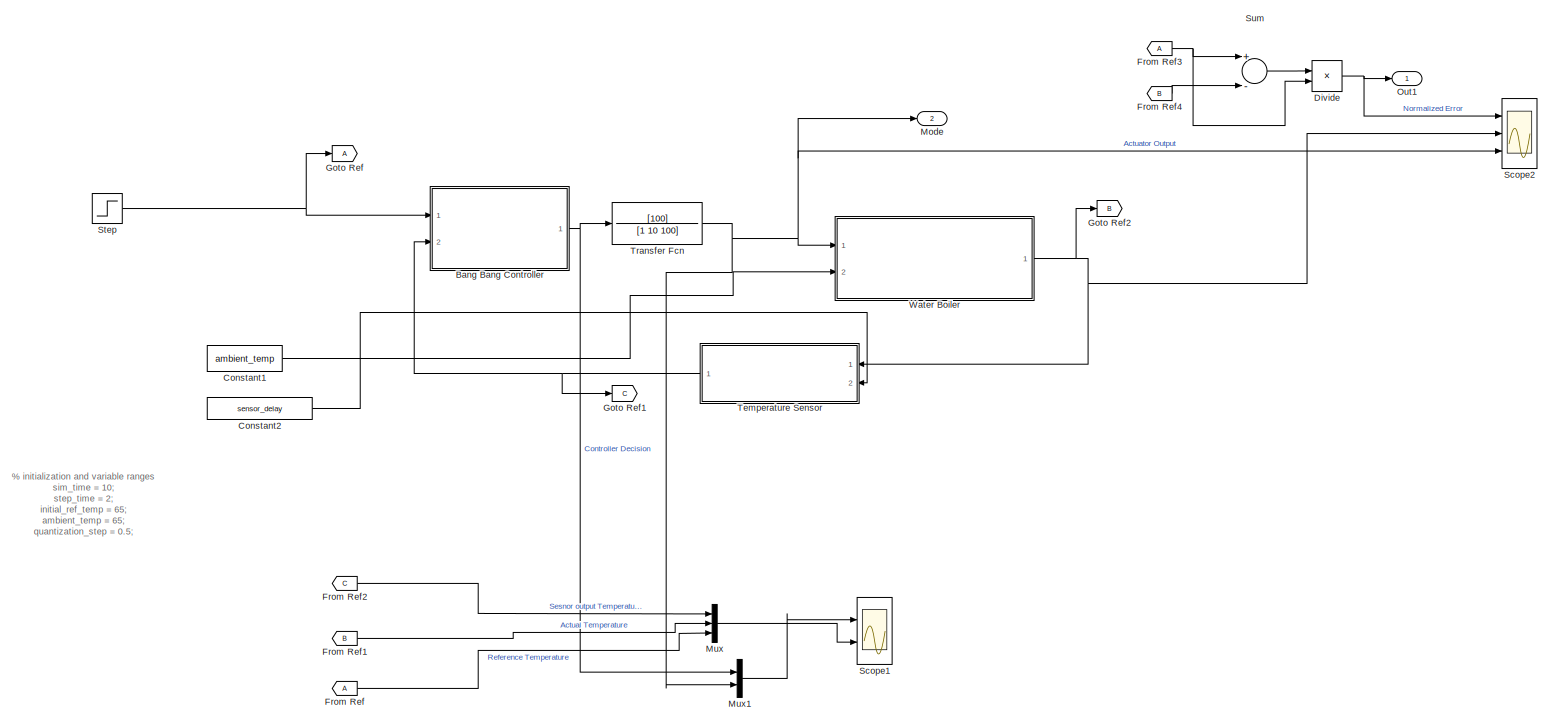
[diagram: root canvas - part 1/1, most of the canvas]
MODEL slx_d18ea7060118
KIND model
CONFIG AbsTol = auto
CONFIG FixedStep = auto
CONFIG MaxStep = auto
CONFIG MinStep = auto
CONFIG RelTol = 1e-3
CONFIG SampleTimeConstraint = Unconstrained
CONFIG Solver = ode23s
CONFIG SolverMode = SingleTasking
CONFIG SolverName = ode23s
CONFIG StartTime = 0.0
CONFIG StopTime = sim_time
WORKSPACE source: MAT-file member
WORKSPACE actuation_delay = 1
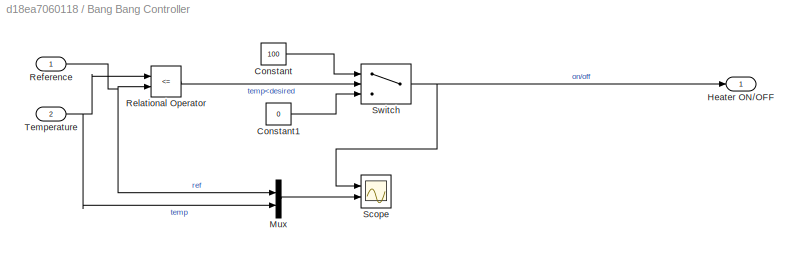
BLOCK [SubSystem] Bang Bang Controller
  Ports = [2, 1]
  RequestExecContextInheritance = off
  Variant = off
BLOCK [Constant] Bang Bang Controller/Constant
  Value = 100
BLOCK [Constant] Bang Bang Controller/Constant1
  Value = 0
BLOCK [Outport] Bang Bang Controller/Heater ON//OFF
  IconDisplay = Port number
BLOCK [Mux] Bang Bang Controller/Mux
  DisplayOption = bar
  Inputs = 2
  Ports = [2, 1]
BLOCK [Inport] Bang Bang Controller/Reference
  IconDisplay = Port number
BLOCK [RelationalOperator] Bang Bang Controller/Relational Operator
  InputSameDT = off
  Operator = <=
  OutDataTypeStr = boolean
  Ports = [2, 1]
BLOCK [Scope] Bang Bang Controller/Scope
  NumInputPorts = 2
  Ports = [2]
  ScopeSpecificationString = C++SS(StrPVP('Location','[221, 510, 2057, 1491]'),StrPVP('Open','off'),StrPVP('ZoomMode','yonly'),MxPVP('AxesTitles',24,'struct(''axes1'',''%<SignalLabel>'',''axes2'',''%<SignalLabel>'')'),MxPVP('ScopeGraphics',28,'struct(''FigureColor'',''[0.5 0.5 0.5]'',''AxesColor'',''[0 0 0]'',''AxesTickColor'',''[1 1 1]'',''LineColors'',''[1 1 0;1 0 1;0 1 1;1 0 0;0 1 0;0 0 1]'',''LineStyles'',''-|-|-|-|-|-'',...<+325ch>
BLOCK [Switch] Bang Bang Controller/Switch
  Criteria = u2 ~= 0
  InputSameDT = off
  SaturateOnIntegerOverflow = off
BLOCK [Inport] Bang Bang Controller/Temperature
  IconDisplay = Port number
  Port = 2
BLOCK [Constant] Constant1
  Value = ambient_temp
BLOCK [Constant] Constant2
  Value = sensor_delay
BLOCK [Product] Divide
  InputSameDT = off
  Inputs = */
  OutDataTypeStr = Inherit: Inherit via internal rule
  Ports = [2, 1]
  RndMeth = Floor
  SaturateOnIntegerOverflow = off
BLOCK [From] From Ref
BLOCK [From] From Ref1
  GotoTag = B
BLOCK [From] From Ref2
  GotoTag = C
BLOCK [From] From Ref3
BLOCK [From] From Ref4
  GotoTag = B
BLOCK [Goto] Goto Ref
BLOCK [Goto] Goto Ref1
  GotoTag = C
BLOCK [Goto] Goto Ref2
  GotoTag = B
BLOCK [Outport] Mode
  IconDisplay = Port number
  Port = 2
BLOCK [Mux] Mux
  DisplayOption = bar
  Inputs = 3
  Ports = [3, 1]
BLOCK [Mux] Mux1
  DisplayOption = bar
  Inputs = 2
  Ports = [2, 1]
BLOCK [Outport] Out1
  IconDisplay = Port number
BLOCK [Scope] Scope1
  NumInputPorts = 2
  Ports = [2]
  ScopeSpecificationString = C++SS(StrPVP('Location','[313, 95, 1914, 1038]'),StrPVP('Open','off'),MxPVP('AxesTitles',24,'struct(''axes1'',''%<SignalLabel>'',''axes2'',''%<SignalLabel>'')'),MxPVP('ScopeGraphics',28,'struct(''FigureColor'',''[0.5 0.5 0.5]'',''AxesColor'',''[0 0 0]'',''AxesTickColor'',''[1 1 1]'',''LineColors'',''[1 1 0;1 0 1;0 1 1;1 0 0;0 1 0;0 0 1]'',''LineStyles'',''-|-|-|-|-|-'',''LineWidths'',''[0.5 0.5 0....<+369ch>
BLOCK [Scope] Scope2
  NumInputPorts = 3
  Ports = [3]
  ScopeSpecificationString = Simulink.scopes.TimeScopeBlockCfg('CurrentConfiguration', extmgr.ConfigurationSet(extmgr.Configuration('Core','General UI',true),extmgr.Configuration('Core','Source UI',true),extmgr.Configuration('Sources','WiredSimulink',true,'DataLoggingSaveFormat','StructureWithTime','DataLoggingDecimation','1','DataLoggingDecimateData',true),extmgr.Configuration('Visuals','Time Domain',true,'SerializedDisplays...<+3050ch>
BLOCK [Step] Step
  After = final_ref_temp
  Before = initial_ref_temp
  SampleTime = 0
  Time = step_time
BLOCK [Sum] Sum
  InputSameDT = off
  Inputs = +-
  OutDataTypeStr = Inherit: Inherit via internal rule
  Ports = [2, 1]
  SaturateOnIntegerOverflow = off
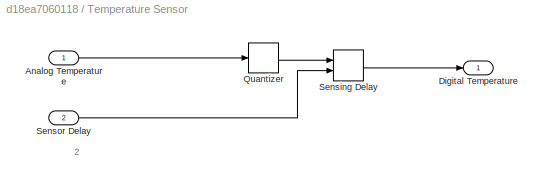
BLOCK [SubSystem] Temperature Sensor
  Ports = [2, 1]
  RequestExecContextInheritance = off
  Variant = off
BLOCK [Inport] Temperature Sensor/Analog Temperature
  IconDisplay = Port number
BLOCK [Outport] Temperature Sensor/Digital Temperature
  IconDisplay = Port number
BLOCK [Quantizer] Temperature Sensor/Quantizer
  QuantizationInterval = quantization_step
BLOCK [VariableTransportDelay] Temperature Sensor/Sensing Delay
  MaximumDelay = 10
  Ports = [2, 1]
BLOCK [Inport] Temperature Sensor/Sensor Delay
  IconDisplay = Port number
  Port = 2
BLOCK [TransferFcn] Transfer Fcn
  Denominator = [1 10 100]
  Numerator = [100]
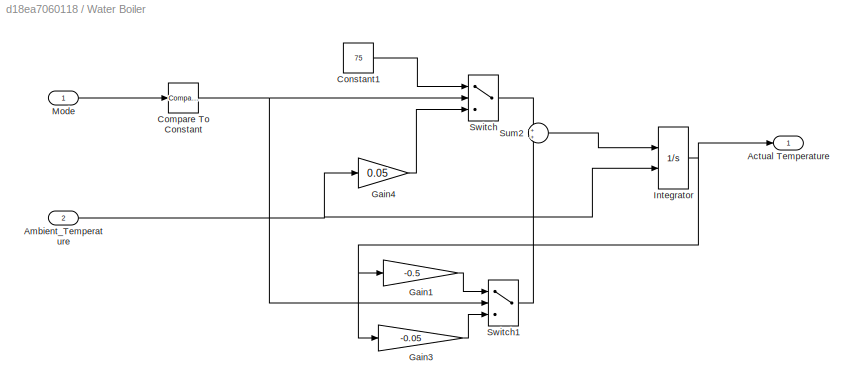
BLOCK [SubSystem] Water Boiler
  Ports = [2, 1]
  RequestExecContextInheritance = off
  Variant = off
BLOCK [Outport] Water Boiler/Actual Temperature
  IconDisplay = Port number
BLOCK [Inport] Water Boiler/Ambient_Temperature
  IconDisplay = Port number
  Port = 2
BLOCK [Reference] Water Boiler/Compare To Constant  REF=simulink/Logic and Bit
Operations/Compare
To Constant
  Ports = [1, 1]
  SourceBlock = simulink/Logic and Bit\nOperations/Compare\nTo Constant
  SourceType = Compare To Constant
BLOCK [Constant] Water Boiler/Constant1
  Value = 75
BLOCK [Gain] Water Boiler/Gain1
  Gain = -0.5
  OutDataTypeStr = Inherit: Inherit via internal rule
  ParamDataTypeStr = Inherit: Inherit via internal rule
  SaturateOnIntegerOverflow = off
BLOCK [Gain] Water Boiler/Gain3
  Gain = -0.05
  OutDataTypeStr = Inherit: Inherit via internal rule
  ParamDataTypeStr = Inherit: Inherit via internal rule
  SaturateOnIntegerOverflow = off
BLOCK [Gain] Water Boiler/Gain4
  Gain = 0.05
  OutDataTypeStr = Inherit: Inherit via internal rule
  ParamDataTypeStr = Inherit: Inherit via internal rule
  SaturateOnIntegerOverflow = off
BLOCK [Integrator] Water Boiler/Integrator
  InitialCondition = 20
  InitialConditionSource = external
  Ports = [2, 1]
  ZeroCross = off
BLOCK [Inport] Water Boiler/Mode
  IconDisplay = Port number
BLOCK [Sum] Water Boiler/Sum2
  IconShape = round
  InputSameDT = off
  OutDataTypeStr = Inherit: Inherit via internal rule
  Ports = [2, 1]
  SaturateOnIntegerOverflow = off
BLOCK [Switch] Water Boiler/Switch
  Threshold = .5
BLOCK [Switch] Water Boiler/Switch1
  Threshold = .5
ANNOTATION (root): % initialization and variable ranges sim_time = 10; step_time = 2; initial_ref_temp = 65; ambient_temp = 65; quantization_step = 0.5; % variable ranges sensor_delay = 0.1; % [0.1, 0.5] final_ref_temp = 90; % [90 140] actuation_delay = 0.5; % [0.5 1]
ANNOTATION Temperature Sensor: 2
LINE Bang Bang Controller/Constant1:1 -> Bang Bang Controller/Switch:3
LINE Bang Bang Controller/Constant:1 -> Bang Bang Controller/Switch:1
LINE Bang Bang Controller/Mux:1 -> Bang Bang Controller/Scope:2
NET Bang Bang Controller/Reference:1 -> Bang Bang Controller/Mux:1, Bang Bang Controller/Relational Operator:2
LINE Bang Bang Controller/Relational Operator:1 -> Bang Bang Controller/Switch:2
NET Bang Bang Controller/Switch:1 -> Bang Bang Controller/Heater ON//OFF:1, Bang Bang Controller/Scope:1
NET Bang Bang Controller/Temperature:1 -> Bang Bang Controller/Mux:2, Bang Bang Controller/Relational Operator:1
NET Bang Bang Controller:1 -> Mux1:1, Transfer Fcn:1
LINE Constant1:1 -> Water Boiler:2
LINE Constant2:1 -> Temperature Sensor:2
NET Divide:1 -> Out1:1, Scope2:1
LINE From Ref1:1 -> Mux:2
LINE From Ref2:1 -> Mux:1
NET From Ref3:1 -> Divide:2, Sum:1
LINE From Ref4:1 -> Sum:2
LINE From Ref:1 -> Mux:3
LINE Mux1:1 -> Scope1:1
LINE Mux:1 -> Scope1:2
NET Step:1 -> Bang Bang Controller:1, Goto Ref:1
LINE Sum:1 -> Divide:1
LINE Temperature Sensor/Analog Temperature:1 -> Temperature Sensor/Quantizer:1
LINE Temperature Sensor/Quantizer:1 -> Temperature Sensor/Sensing Delay:1
LINE Temperature Sensor/Sensing Delay:1 -> Temperature Sensor/Digital Temperature:1
LINE Temperature Sensor/Sensor Delay:1 -> Temperature Sensor/Sensing Delay:2
NET Temperature Sensor:1 -> Bang Bang Controller:2, Goto Ref1:1
NET Transfer Fcn:1 -> Mode:1, Mux1:2, Scope2:3, Water Boiler:1
NET Water Boiler/Ambient_Temperature:1 -> Water Boiler/Gain4:1, Water Boiler/Integrator:2
NET Water Boiler/Compare To Constant:1 -> Water Boiler/Switch1:2, Water Boiler/Switch:2
LINE Water Boiler/Constant1:1 -> Water Boiler/Switch:1
LINE Water Boiler/Gain1:1 -> Water Boiler/Switch1:1
LINE Water Boiler/Gain3:1 -> Water Boiler/Switch1:3
LINE Water Boiler/Gain4:1 -> Water Boiler/Switch:3
NET Water Boiler/Integrator:1 -> Water Boiler/Actual Temperature:1, Water Boiler/Gain1:1, Water Boiler/Gain3:1
LINE Water Boiler/Mode:1 -> Water Boiler/Compare To Constant:1
LINE Water Boiler/Sum2:1 -> Water Boiler/Integrator:1
LINE Water Boiler/Switch1:1 -> Water Boiler/Sum2:2
LINE Water Boiler/Switch:1 -> Water Boiler/Sum2:1
NET Water Boiler:1 -> Goto Ref2:1, Scope2:2, Temperature Sensor:1
note: NET lines group one-source signal fan-out (src -> all destinations, sorted); 1:1 wires keep LINE
